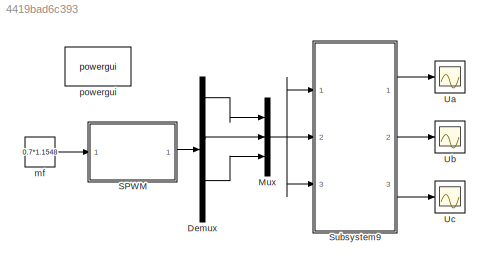
MODEL slx_4419bad6c393
KIND model
CONFIG InitFcn = Fc=5000;\nf=50;\nVdc=700;
BLOCK [Demux] Demux
  DisplayOption = bar
  Outputs = 6
  Ports = [1, 6]
BLOCK [Mux] Mux
  DisplayOption = bar
  Inputs = 3
  Ports = [3, 1]
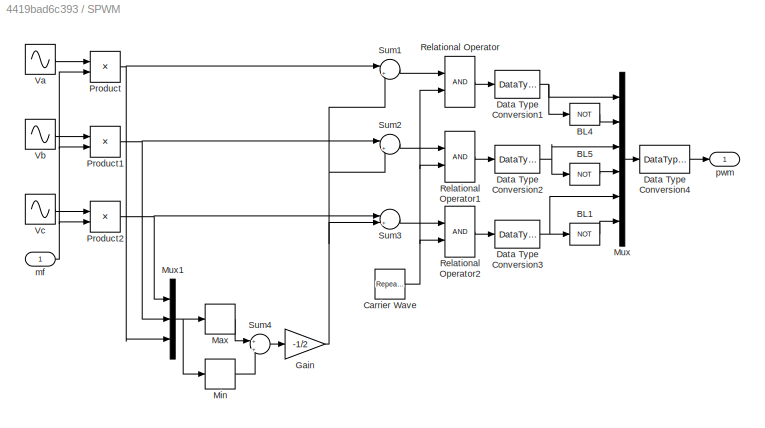
BLOCK [SubSystem] SPWM
  Ports = [1, 1]
  RequestExecContextInheritance = off
BLOCK [Logic] SPWM/BL1
  Inputs = 1
  Operator = NOT
  Ports = [1, 1]
BLOCK [Logic] SPWM/BL4
  Inputs = 1
  Operator = NOT
  Ports = [1, 1]
BLOCK [Logic] SPWM/BL5
  Inputs = 1
  Operator = NOT
  Ports = [1, 1]
BLOCK [Reference] SPWM/Carrier Wave  REF=simulink/Sources/Repeating
Sequence
  Ports = [0, 1]
  SourceBlock = simulink/Sources/Repeating\nSequence
  SourceType = Repeating table
  rep_seq_t = [0 1/Fc/4 3/Fc/4 1/Fc]
  rep_seq_y = [0 -1 1 0]
BLOCK [DataTypeConversion] SPWM/Data Type Conversion1
  OutDataTypeStr = boolean
BLOCK [DataTypeConversion] SPWM/Data Type Conversion2
  OutDataTypeStr = boolean
BLOCK [DataTypeConversion] SPWM/Data Type Conversion3
  OutDataTypeStr = boolean
BLOCK [DataTypeConversion] SPWM/Data Type Conversion4
  OutDataTypeStr = double
BLOCK [Gain] SPWM/Gain
  Gain = -1/2
  OutDataTypeStr = Inherit: Inherit via internal rule
  ParamDataTypeStr = Inherit: Inherit via internal rule
  SaturateOnIntegerOverflow = off
BLOCK [MinMax] SPWM/Max
  Function = max
  InputSameDT = off
  Ports = [1, 1]
  SaturateOnIntegerOverflow = off
BLOCK [MinMax] SPWM/Min
  InputSameDT = off
  Ports = [1, 1]
  SaturateOnIntegerOverflow = off
BLOCK [Mux] SPWM/Mux
  DisplayOption = bar
  Inputs = 6
  Ports = [6, 1]
BLOCK [Mux] SPWM/Mux1
  DisplayOption = bar
  Inputs = 3
  Ports = [3, 1]
BLOCK [Product] SPWM/Product
  InputSameDT = off
  OutDataTypeStr = Inherit: Inherit via internal rule
  Ports = [2, 1]
  RndMeth = Floor
  SaturateOnIntegerOverflow = off
BLOCK [Product] SPWM/Product1
  InputSameDT = off
  OutDataTypeStr = Inherit: Inherit via internal rule
  Ports = [2, 1]
  RndMeth = Floor
  SaturateOnIntegerOverflow = off
BLOCK [Product] SPWM/Product2
  InputSameDT = off
  OutDataTypeStr = Inherit: Inherit via internal rule
  Ports = [2, 1]
  RndMeth = Floor
  SaturateOnIntegerOverflow = off
BLOCK [RelationalOperator] SPWM/Relational Operator
  Ports = [2, 1]
BLOCK [RelationalOperator] SPWM/Relational Operator1
  Ports = [2, 1]
BLOCK [RelationalOperator] SPWM/Relational Operator2
  Ports = [2, 1]
BLOCK [Sum] SPWM/Sum1
  IconShape = round
  InputSameDT = off
  Inputs = |++
  OutDataTypeStr = Inherit: Inherit via internal rule
  Ports = [2, 1]
  SaturateOnIntegerOverflow = off
BLOCK [Sum] SPWM/Sum2
  IconShape = round
  InputSameDT = off
  Inputs = |++
  OutDataTypeStr = Inherit: Inherit via internal rule
  Ports = [2, 1]
  SaturateOnIntegerOverflow = off
BLOCK [Sum] SPWM/Sum3
  IconShape = round
  InputSameDT = off
  Inputs = |++
  OutDataTypeStr = Inherit: Inherit via internal rule
  Ports = [2, 1]
  SaturateOnIntegerOverflow = off
BLOCK [Sum] SPWM/Sum4
  IconShape = round
  InputSameDT = off
  Inputs = +|+
  OutDataTypeStr = Inherit: Inherit via internal rule
  Ports = [2, 1]
  SaturateOnIntegerOverflow = off
BLOCK [Sin] SPWM/Va
  Frequency = 2*pi*f
  Ports = [0, 1]
  SampleTime = 0
BLOCK [Sin] SPWM/Vb
  Frequency = 2*pi*f
  Phase = -2*pi/3
  Ports = [0, 1]
  SampleTime = 0
BLOCK [Sin] SPWM/Vc
  Frequency = 2*pi*f
  Phase = 2*pi/3
  Ports = [0, 1]
  SampleTime = 0
BLOCK [Inport] SPWM/mf
  IconDisplay = Port number
BLOCK [Outport] SPWM/pwm
  IconDisplay = Port number
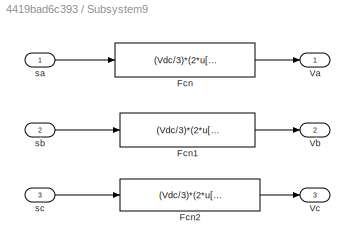
BLOCK [SubSystem] Subsystem9
  Ports = [3, 3]
  RequestExecContextInheritance = off
BLOCK [Fcn] Subsystem9/Fcn
  Expr = (Vdc/3)*(2*u[1]-u[2]-u[3])
BLOCK [Fcn] Subsystem9/Fcn1
  Expr = (Vdc/3)*(2*u[2]-u[1]-u[3])
BLOCK [Fcn] Subsystem9/Fcn2
  Expr = (Vdc/3)*(2*u[3]-u[2]-u[1])
BLOCK [Outport] Subsystem9/Va
  IconDisplay = Port number
BLOCK [Outport] Subsystem9/Vb
  IconDisplay = Port number
  Port = 2
BLOCK [Outport] Subsystem9/Vc
  IconDisplay = Port number
  Port = 3
BLOCK [Inport] Subsystem9/sa
  IconDisplay = Port number
BLOCK [Inport] Subsystem9/sb
  IconDisplay = Port number
  Port = 2
BLOCK [Inport] Subsystem9/sc
  IconDisplay = Port number
  Port = 3
BLOCK [Scope] Ua  
  DataFormat = StructureWithTime
  Floating = off
  LimitDataPoints = off
  NumInputPorts = 1
  Ports = [1]
  SampleInput = on
  SampleTime = 0
  SaveName = Ua
  SaveToWorkspace = on
  ShowLegends = off
  YMax = 500
  YMin = -500
BLOCK [Scope] Ub
  DataFormat = StructureWithTime
  Floating = off
  LimitDataPoints = off
  NumInputPorts = 1
  Ports = [1]
  SampleInput = on
  SampleTime = 0
  SaveName = Ua1
  ShowLegends = off
  YMax = 500
  YMin = -500
BLOCK [Scope] Uc
  DataFormat = StructureWithTime
  Floating = off
  LimitDataPoints = off
  NumInputPorts = 1
  Ports = [1]
  SampleInput = on
  SampleTime = 0
  SaveName = Ua2
  ShowLegends = off
  YMax = 500
  YMin = -500
BLOCK [Constant] mf
  Value = 0.7*1.1548
BLOCK [Reference] powergui  REF=powerlib/powergui
  DisableRonSwitches = off
  DisableSnubberDevices = off
  DisableVfSwitches = off
  DisplayEquations = off
  DisplayStyle = 1
  EnableUseOfTLC = off
  ErrMax = 1e-4
  Frange = [0:2:500]
  FreqAxis = off
  FunctionMessages = off
  HookPort = off
  Interpol = off
  Iterations = 50
  MaxFrequency = 9000
  Pbase = 100e6
  Ports = []
  Priority = 1
  ResistiveCurrentMeasurement = off
  RestoreLinks = warning
  RmsSteady = 1
  SPID = off
  SampleTime = 50e-6
  ShowGrid = off
  SolverType = Tustin/Backward Euler (TBE)
  SourceBlock = powerlib/powergui
  SourceType = PSB option menu block
  StartTime = 0
  SwTol = 0
  Ts = 100
  UnitsV = kV
  UnitsW = MW
  UserDataPersistent = on
  Xlog = on
  Ylog = off
  ZoomFFT = off
  cycles = 1
  display = off
  echomessages = off
  frequency = 60
  frequencyindice = 60
  frequencyindicesteady = 1
  fundamental = 50
  methode = off
  save = off
  structure = Ua
  variable = ZData
  x0status = blocks
LINE Demux:1 -> Mux:1
LINE Demux:3 -> Mux:2
LINE Demux:5 -> Mux:3
NET Mux:1 -> Subsystem9:1, Subsystem9:2, Subsystem9:3
LINE SPWM/BL1:1 -> SPWM/Mux:6
LINE SPWM/BL4:1 -> SPWM/Mux:2
LINE SPWM/BL5:1 -> SPWM/Mux:4
NET SPWM/Carrier Wave:1 -> SPWM/Relational Operator1:2, SPWM/Relational Operator2:2, SPWM/Relational Operator:2
NET SPWM/Data Type Conversion1:1 -> SPWM/BL4:1, SPWM/Mux:1
NET SPWM/Data Type Conversion2:1 -> SPWM/BL5:1, SPWM/Mux:3
NET SPWM/Data Type Conversion3:1 -> SPWM/BL1:1, SPWM/Mux:5
LINE SPWM/Data Type Conversion4:1 -> SPWM/pwm:1
NET SPWM/Gain:1 -> SPWM/Sum1:2, SPWM/Sum2:2, SPWM/Sum3:2
LINE SPWM/Max:1 -> SPWM/Sum4:1
LINE SPWM/Min:1 -> SPWM/Sum4:2
NET SPWM/Mux1:1 -> SPWM/Max:1, SPWM/Min:1
LINE SPWM/Mux:1 -> SPWM/Data Type Conversion4:1
NET SPWM/Product1:1 -> SPWM/Mux1:2, SPWM/Sum2:1
NET SPWM/Product2:1 -> SPWM/Mux1:1, SPWM/Sum3:1
NET SPWM/Product:1 -> SPWM/Mux1:3, SPWM/Sum1:1
LINE SPWM/Relational Operator1:1 -> SPWM/Data Type Conversion2:1
LINE SPWM/Relational Operator2:1 -> SPWM/Data Type Conversion3:1
LINE SPWM/Relational Operator:1 -> SPWM/Data Type Conversion1:1
LINE SPWM/Sum1:1 -> SPWM/Relational Operator:1
LINE SPWM/Sum2:1 -> SPWM/Relational Operator1:1
LINE SPWM/Sum3:1 -> SPWM/Relational Operator2:1
LINE SPWM/Sum4:1 -> SPWM/Gain:1
LINE SPWM/Va:1 -> SPWM/Product:1
LINE SPWM/Vb:1 -> SPWM/Product1:1
LINE SPWM/Vc:1 -> SPWM/Product2:1
NET SPWM/mf:1 -> SPWM/Product1:2, SPWM/Product2:2, SPWM/Product:2
LINE SPWM:1 -> Demux:1
LINE Subsystem9/Fcn1:1 -> Subsystem9/Vb:1
LINE Subsystem9/Fcn2:1 -> Subsystem9/Vc:1
LINE Subsystem9/Fcn:1 -> Subsystem9/Va:1
LINE Subsystem9/sa:1 -> Subsystem9/Fcn:1
LINE Subsystem9/sb:1 -> Subsystem9/Fcn1:1
LINE Subsystem9/sc:1 -> Subsystem9/Fcn2:1
LINE Subsystem9:1 -> Ua  :1
LINE Subsystem9:2 -> Ub:1
LINE Subsystem9:3 -> Uc:1
LINE mf:1 -> SPWM:1
note: NET lines group one-source signal fan-out (src -> all destinations, sorted); 1:1 wires keep LINE
